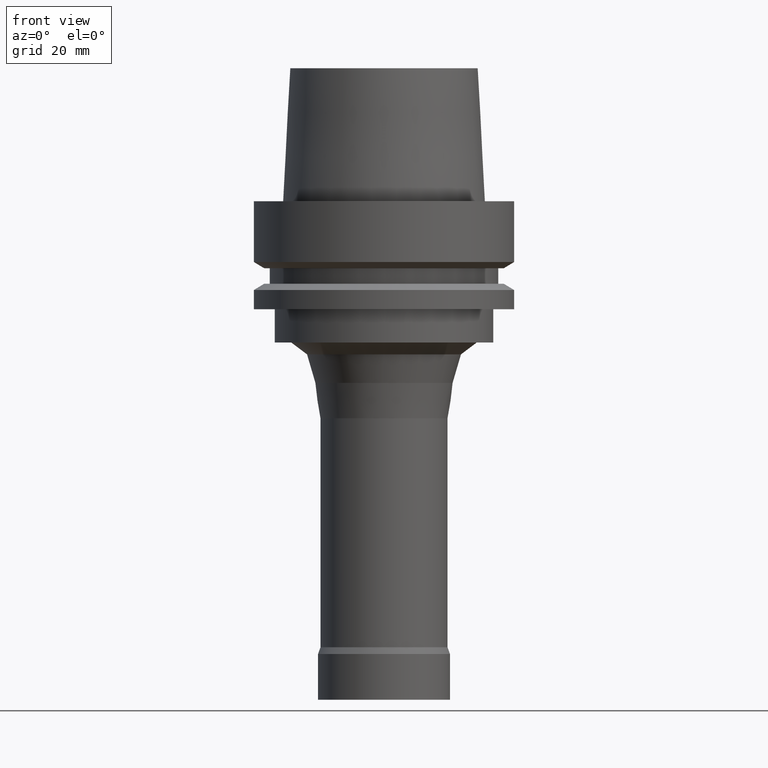
[diagram: clean part render]
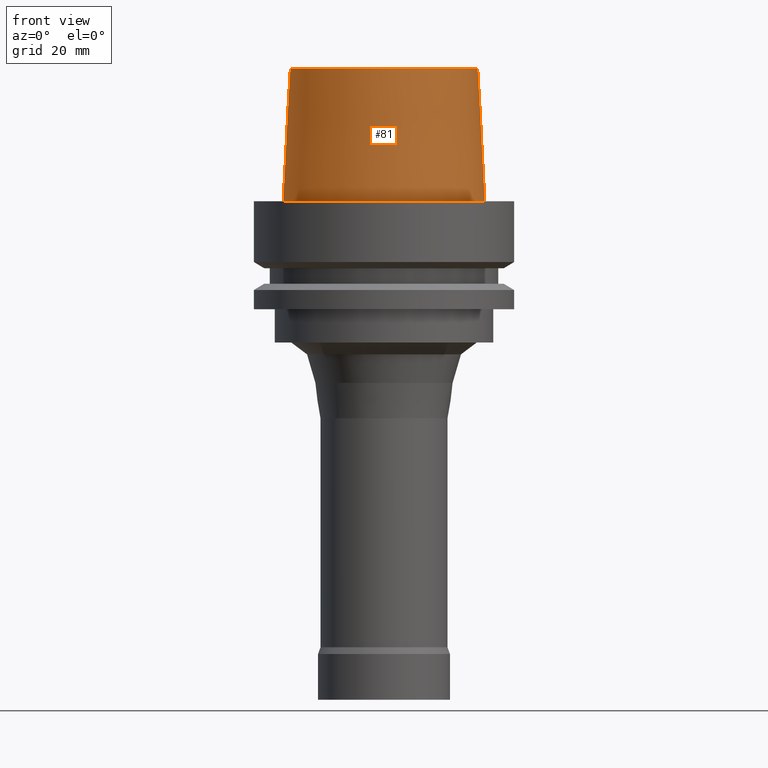
[diagram: same view with one face highlighted and labeled with its STEP entity id]
A machine part, front view. The second image highlights one B-rep face of the part: STEP entity #81.
In plain terms, the highlighted conical surface has half-angle 2.862 deg.
Its self-contained STEP definition (entity closure, byte-faithful):
#81=ADVANCED_FACE('',(#112,#113),#114,.T.);
#112=FACE_BOUND('',#170,.T.);
#113=FACE_BOUND('',#171,.T.);
#114=CONICAL_SURFACE('',#172,23.5149999985447,0.0499583958256321);
#170=EDGE_LOOP('',(#240));
#171=EDGE_LOOP('',(#241));
#172=AXIS2_PLACEMENT_3D('',#242,#243,#244);
#240=ORIENTED_EDGE('',*,*,#316,.F.);
#241=ORIENTED_EDGE('',*,*,#315,.T.);
#242=CARTESIAN_POINT('',(-9.79717439317883E-016,-1.95943487863576E-015,16.0));
#243=DIRECTION('',(6.12323399573676E-017,1.22464679914735E-016,-1.0));
#244=DIRECTION('',(-1.23259516440783E-032,1.0,1.22464679914735E-016));
#315=EDGE_CURVE('',#339,#339,#340,.T.);
#316=EDGE_CURVE('',#341,#341,#342,.T.);
#339=VERTEX_POINT('',#377);
#340=CIRCLE('',#378,22.7149999968815);
#341=VERTEX_POINT('',#379);
#342=CIRCLE('',#380,24.3150000002079);
#377=CARTESIAN_POINT('',(-1.95943487863577E-015,22.7149999968815,32.0));
#378=AXIS2_PLACEMENT_3D('',#420,#421,#422);
#379=CARTESIAN_POINT('',(-2.99705514228327E-031,24.3150000002079,2.97772869215225E-015));
#380=AXIS2_PLACEMENT_3D('',#423,#424,#425);
#420=CARTESIAN_POINT('',(-1.95943487863576E-015,-3.91886975727153E-015,32.0));
#421=DIRECTION('',(6.12323399573677E-017,1.22464679914735E-016,-1.0));
#422=DIRECTION('',(-1.23259516440783E-032,1.0,1.22464679914735E-016));
#423=CARTESIAN_POINT('',(0.0,0.0,0.0));
#424=DIRECTION('',(6.12323399573677E-017,1.22464679914735E-016,-1.0));
#425=DIRECTION('',(-1.23259516440783E-032,1.0,1.22464679914735E-016));